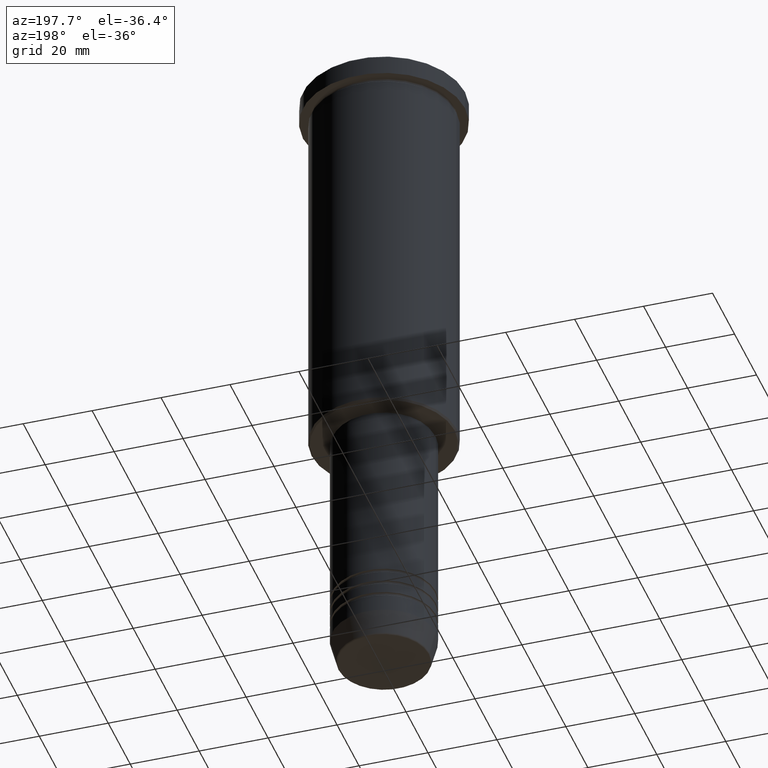
[diagram: clean part render]
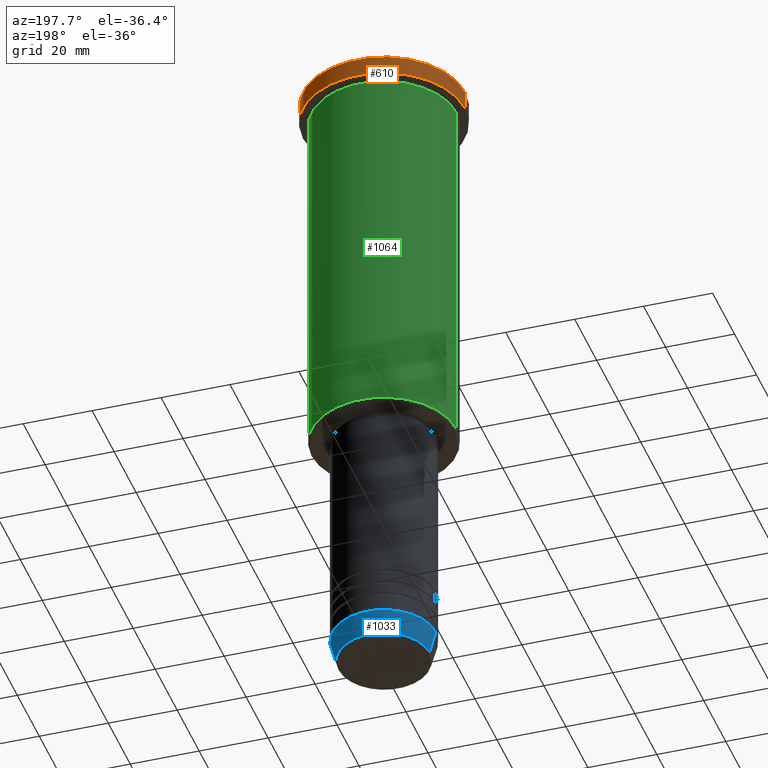
[diagram: same view with three faces highlighted in distinct colors, each labeled with its STEP entity id]
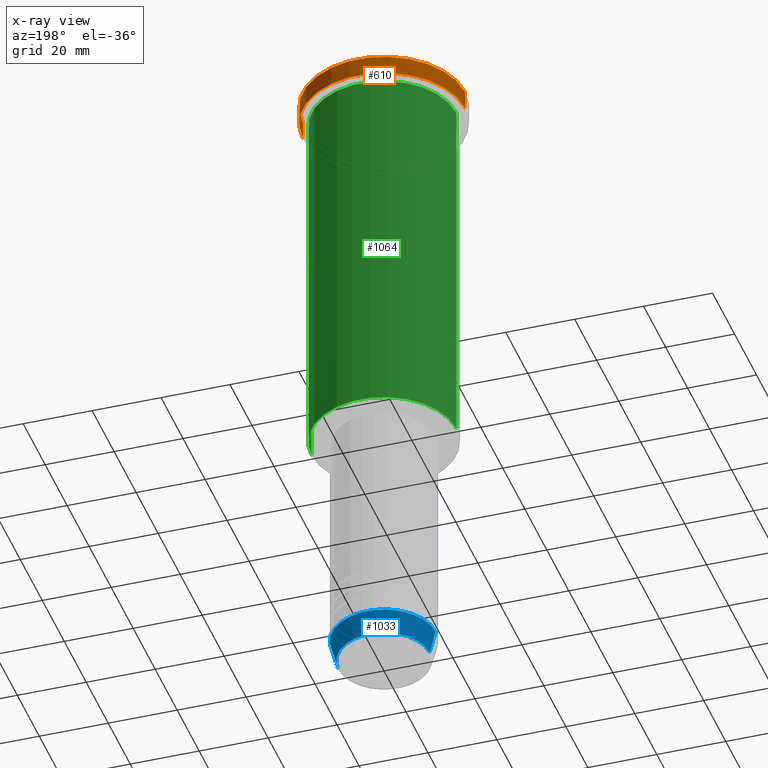
[diagram: x-ray of the same camera — body ghosted, the three highlighted faces saturated]
A machine part, auxiliary view with three faces highlighted in distinct colors.
The next image is the same camera in x-ray (body ghosted, the three faces saturated) — at least one of them is partly hidden behind the body in this view.
Their STEP definitions:

[orange] entity #610 — the highlighted cylindrical surface (partial cylindrical patch) has radius 23.5 mm, axis along (-0, -0, 1).
#39 = EDGE_CURVE ( 'NONE', #444, #141, #171, .T. ) ;
#63 = CARTESIAN_POINT ( 'NONE',  ( 0.000000000000000000, 0.000000000000000000, 0.000000000000000000 ) ) ;
#107 = LINE ( 'NONE', #296, #634 ) ;
#111 = DIRECTION ( 'NONE',  ( 1.000000000000000000, 0.000000000000000000, 0.000000000000000000 ) ) ;
#141 = VERTEX_POINT ( 'NONE', #480 ) ;
#147 = EDGE_CURVE ( 'NONE', #604, #141, #673, .T. ) ;
#155 = EDGE_CURVE ( 'NONE', #359, #604, #107, .T. ) ;
#166 = CARTESIAN_POINT ( 'NONE',  ( 23.50000000000000000, 0.000000000000000000, 0.000000000000000000 ) ) ;
#171 = LINE ( 'NONE', #166, #999 ) ;
#231 = DIRECTION ( 'NONE',  ( -0.000000000000000000, -0.000000000000000000, 1.000000000000000000 ) ) ;
#287 = DIRECTION ( 'NONE',  ( 0.000000000000000000, 0.000000000000000000, -1.000000000000000000 ) ) ;
#296 = CARTESIAN_POINT ( 'NONE',  ( -23.50000000000000000, 2.877919977996280320E-15, 0.000000000000000000 ) ) ;
#311 = DIRECTION ( 'NONE',  ( 1.000000000000000000, 0.000000000000000000, 0.000000000000000000 ) ) ;
#315 = DIRECTION ( 'NONE',  ( 1.000000000000000000, 0.000000000000000000, 0.000000000000000000 ) ) ;
#320 = EDGE_CURVE ( 'NONE', #444, #359, #428, .T. ) ;
#353 = DIRECTION ( 'NONE',  ( -0.000000000000000000, -0.000000000000000000, 1.000000000000000000 ) ) ;
#359 = VERTEX_POINT ( 'NONE', #775 ) ;
#382 = CARTESIAN_POINT ( 'NONE',  ( 0.000000000000000000, 0.000000000000000000, -0.5000000000000281997 ) ) ;
#428 = CIRCLE ( 'NONE', #751, 23.50000000000000000 ) ;
#439 = ORIENTED_EDGE ( 'NONE', *, *, #155, .T. ) ;
#444 = VERTEX_POINT ( 'NONE', #807 ) ;
#477 = DIRECTION ( 'NONE',  ( -0.000000000000000000, -0.000000000000000000, 1.000000000000000000 ) ) ;
#480 = CARTESIAN_POINT ( 'NONE',  ( 23.50000000000000000, 0.000000000000000000, -0.5000000000000281997 ) ) ;
#494 = EDGE_LOOP ( 'NONE', ( #1151, #439, #1089, #594 ) ) ;
#495 = CARTESIAN_POINT ( 'NONE',  ( -23.50000000000000000, 2.877919977996280320E-15, -0.5000000000000281997 ) ) ;
#578 = AXIS2_PLACEMENT_3D ( 'NONE', #382, #287, #111 ) ;
#580 = AXIS2_PLACEMENT_3D ( 'NONE', #63, #859, #315 ) ;
#594 = ORIENTED_EDGE ( 'NONE', *, *, #39, .F. ) ;
#604 = VERTEX_POINT ( 'NONE', #495 ) ;
#610 = ADVANCED_FACE ( 'NONE', ( #1046 ), #703, .T. ) ;
#634 = VECTOR ( 'NONE', #477, 1000.000000000000000 ) ;
#673 = CIRCLE ( 'NONE', #578, 23.50000000000000000 ) ;
#703 = CYLINDRICAL_SURFACE ( 'NONE', #580, 23.50000000000000000 ) ;
#751 = AXIS2_PLACEMENT_3D ( 'NONE', #1053, #231, #311 ) ;
#775 = CARTESIAN_POINT ( 'NONE',  ( -23.50000000000000000, 2.877919977996280320E-15, -5.999999999999993783 ) ) ;
#807 = CARTESIAN_POINT ( 'NONE',  ( 23.50000000000000000, 0.000000000000000000, -5.999999999999993783 ) ) ;
#859 = DIRECTION ( 'NONE',  ( -0.000000000000000000, -0.000000000000000000, 1.000000000000000000 ) ) ;
#999 = VECTOR ( 'NONE', #353, 1000.000000000000000 ) ;
#1046 = FACE_OUTER_BOUND ( 'NONE', #494, .T. ) ;
#1053 = CARTESIAN_POINT ( 'NONE',  ( 0.000000000000000000, 0.000000000000000000, -5.999999999999993783 ) ) ;
#1089 = ORIENTED_EDGE ( 'NONE', *, *, #147, .T. ) ;
#1151 = ORIENTED_EDGE ( 'NONE', *, *, #320, .T. ) ;

[blue] entity #1033 — the highlighted conical surface has half-angle 15 deg.
#43 = AXIS2_PLACEMENT_3D ( 'NONE', #1175, #537, #255 ) ;
#62 = EDGE_CURVE ( 'NONE', #743, #415, #406, .T. ) ;
#68 = CONICAL_SURFACE ( 'NONE', #735, 15.00000000000000000, 0.2617993877991500740 ) ;
#104 = CARTESIAN_POINT ( 'NONE',  ( -15.00000000000000000, 1.836970198721029589E-15, -184.0000000000000000 ) ) ;
#109 = ORIENTED_EDGE ( 'NONE', *, *, #62, .F. ) ;
#239 = EDGE_CURVE ( 'NONE', #1165, #415, #574, .T. ) ;
#255 = DIRECTION ( 'NONE',  ( 1.000000000000000000, 0.000000000000000000, 0.000000000000000000 ) ) ;
#259 = CARTESIAN_POINT ( 'NONE',  ( 13.22365507213719482, 0.000000000000000000, -190.6294095225512422 ) ) ;
#274 = AXIS2_PLACEMENT_3D ( 'NONE', #665, #404, #1042 ) ;
#297 = DIRECTION ( 'NONE',  ( -0.000000000000000000, -0.000000000000000000, 1.000000000000000000 ) ) ;
#336 = ORIENTED_EDGE ( 'NONE', *, *, #239, .T. ) ;
#381 = CARTESIAN_POINT ( 'NONE',  ( 15.00000000000000000, 0.000000000000000000, -184.0000000000000000 ) ) ;
#401 = FACE_OUTER_BOUND ( 'NONE', #973, .T. ) ;
#404 = DIRECTION ( 'NONE',  ( -0.000000000000000000, -0.000000000000000000, 1.000000000000000000 ) ) ;
#406 = CIRCLE ( 'NONE', #43, 15.00000000000000000 ) ;
#415 = VERTEX_POINT ( 'NONE', #104 ) ;
#442 = VERTEX_POINT ( 'NONE', #259 ) ;
#456 = LINE ( 'NONE', #381, #1158 ) ;
#537 = DIRECTION ( 'NONE',  ( -0.000000000000000000, -0.000000000000000000, 1.000000000000000000 ) ) ;
#574 = LINE ( 'NONE', #848, #903 ) ;
#599 = CIRCLE ( 'NONE', #274, 13.22365507213719482 ) ;
#617 = ORIENTED_EDGE ( 'NONE', *, *, #996, .F. ) ;
#665 = CARTESIAN_POINT ( 'NONE',  ( 0.000000000000000000, 0.000000000000000000, -190.6294095225512422 ) ) ;
#671 = DIRECTION ( 'NONE',  ( 1.000000000000000000, 0.000000000000000000, 0.000000000000000000 ) ) ;
#729 = DIRECTION ( 'NONE',  ( 0.2588190451025213501, 0.000000000000000000, 0.9659258262890680902 ) ) ;
#735 = AXIS2_PLACEMENT_3D ( 'NONE', #853, #297, #671 ) ;
#743 = VERTEX_POINT ( 'NONE', #826 ) ;
#760 = DIRECTION ( 'NONE',  ( -0.2588190451025213501, 3.169619151431772337E-17, 0.9659258262890680902 ) ) ;
#778 = EDGE_CURVE ( 'NONE', #442, #1165, #599, .T. ) ;
#826 = CARTESIAN_POINT ( 'NONE',  ( 15.00000000000000000, 0.000000000000000000, -184.0000000000000000 ) ) ;
#848 = CARTESIAN_POINT ( 'NONE',  ( -15.00000000000000000, 1.836970198721029589E-15, -184.0000000000000000 ) ) ;
#853 = CARTESIAN_POINT ( 'NONE',  ( 0.000000000000000000, 0.000000000000000000, -184.0000000000000000 ) ) ;
#903 = VECTOR ( 'NONE', #760, 1000.000000000000000 ) ;
#973 = EDGE_LOOP ( 'NONE', ( #1141, #336, #109, #617 ) ) ;
#996 = EDGE_CURVE ( 'NONE', #442, #743, #456, .T. ) ;
#1033 = ADVANCED_FACE ( 'NONE', ( #401 ), #68, .T. ) ;
#1040 = CARTESIAN_POINT ( 'NONE',  ( -13.22365507213719660, 1.728200442216588780E-15, -190.6294095225512422 ) ) ;
#1042 = DIRECTION ( 'NONE',  ( 1.000000000000000000, 0.000000000000000000, 0.000000000000000000 ) ) ;
#1141 = ORIENTED_EDGE ( 'NONE', *, *, #778, .T. ) ;
#1158 = VECTOR ( 'NONE', #729, 1000.000000000000000 ) ;
#1165 = VERTEX_POINT ( 'NONE', #1040 ) ;
#1175 = CARTESIAN_POINT ( 'NONE',  ( 0.000000000000000000, 0.000000000000000000, -184.0000000000000000 ) ) ;

[green] entity #1064 — the highlighted cylindrical surface (partial cylindrical patch) has radius 21 mm, axis along (-0, -0, 1).
#2 = DIRECTION ( 'NONE',  ( -0.000000000000000000, -0.000000000000000000, 1.000000000000000000 ) ) ;
#42 = CARTESIAN_POINT ( 'NONE',  ( 21.00000000000000000, 0.000000000000000000, -6.999999999999993783 ) ) ;
#73 = EDGE_CURVE ( 'NONE', #1044, #505, #624, .T. ) ;
#123 = DIRECTION ( 'NONE',  ( 1.000000000000000000, 0.000000000000000000, 0.000000000000000000 ) ) ;
#193 = LINE ( 'NONE', #820, #849 ) ;
#228 = CIRCLE ( 'NONE', #847, 21.00000000000000000 ) ;
#254 = CARTESIAN_POINT ( 'NONE',  ( 0.000000000000000000, 0.000000000000000000, -6.999999999999993783 ) ) ;
#316 = CARTESIAN_POINT ( 'NONE',  ( 21.00000000000000000, 0.000000000000000000, -115.4999999999999858 ) ) ;
#422 = CARTESIAN_POINT ( 'NONE',  ( -21.00000000000000000, 2.571758278209441661E-15, -115.4999999999999858 ) ) ;
#461 = ORIENTED_EDGE ( 'NONE', *, *, #73, .F. ) ;
#468 = AXIS2_PLACEMENT_3D ( 'NONE', #254, #897, #808 ) ;
#505 = VERTEX_POINT ( 'NONE', #42 ) ;
#507 = DIRECTION ( 'NONE',  ( -0.000000000000000000, -0.000000000000000000, 1.000000000000000000 ) ) ;
#530 = EDGE_CURVE ( 'NONE', #1044, #590, #228, .T. ) ;
#568 = CARTESIAN_POINT ( 'NONE',  ( -21.00000000000000000, 2.571758278209441661E-15, -6.999999999999993783 ) ) ;
#576 = FACE_OUTER_BOUND ( 'NONE', #1128, .T. ) ;
#582 = ORIENTED_EDGE ( 'NONE', *, *, #863, .F. ) ;
#590 = VERTEX_POINT ( 'NONE', #422 ) ;
#624 = LINE ( 'NONE', #900, #1077 ) ;
#660 = AXIS2_PLACEMENT_3D ( 'NONE', #1126, #684, #123 ) ;
#684 = DIRECTION ( 'NONE',  ( -0.000000000000000000, -0.000000000000000000, 1.000000000000000000 ) ) ;
#695 = CIRCLE ( 'NONE', #468, 21.00000000000000000 ) ;
#750 = CYLINDRICAL_SURFACE ( 'NONE', #660, 21.00000000000000000 ) ;
#808 = DIRECTION ( 'NONE',  ( 1.000000000000000000, 0.000000000000000000, 0.000000000000000000 ) ) ;
#818 = ORIENTED_EDGE ( 'NONE', *, *, #530, .T. ) ;
#820 = CARTESIAN_POINT ( 'NONE',  ( -21.00000000000000000, 2.571758278209441661E-15, 0.000000000000000000 ) ) ;
#847 = AXIS2_PLACEMENT_3D ( 'NONE', #1152, #507, #1051 ) ;
#849 = VECTOR ( 'NONE', #909, 1000.000000000000000 ) ;
#863 = EDGE_CURVE ( 'NONE', #505, #910, #695, .T. ) ;
#897 = DIRECTION ( 'NONE',  ( -0.000000000000000000, -0.000000000000000000, 1.000000000000000000 ) ) ;
#900 = CARTESIAN_POINT ( 'NONE',  ( 21.00000000000000000, 0.000000000000000000, 0.000000000000000000 ) ) ;
#909 = DIRECTION ( 'NONE',  ( -0.000000000000000000, -0.000000000000000000, 1.000000000000000000 ) ) ;
#910 = VERTEX_POINT ( 'NONE', #568 ) ;
#917 = EDGE_CURVE ( 'NONE', #590, #910, #193, .T. ) ;
#1044 = VERTEX_POINT ( 'NONE', #316 ) ;
#1051 = DIRECTION ( 'NONE',  ( -1.000000000000000000, 0.000000000000000000, 0.000000000000000000 ) ) ;
#1064 = ADVANCED_FACE ( 'NONE', ( #576 ), #750, .T. ) ;
#1071 = ORIENTED_EDGE ( 'NONE', *, *, #917, .T. ) ;
#1077 = VECTOR ( 'NONE', #2, 1000.000000000000000 ) ;
#1126 = CARTESIAN_POINT ( 'NONE',  ( 0.000000000000000000, 0.000000000000000000, 0.000000000000000000 ) ) ;
#1128 = EDGE_LOOP ( 'NONE', ( #818, #1071, #582, #461 ) ) ;
#1152 = CARTESIAN_POINT ( 'NONE',  ( 0.000000000000000000, 0.000000000000000000, -115.4999999999999858 ) ) ;